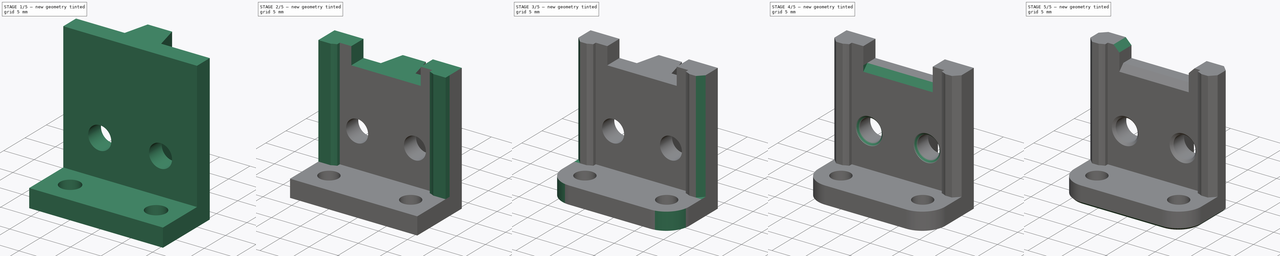
[diagram: build sequence overview — one tinted view per stage of 5, left to right]
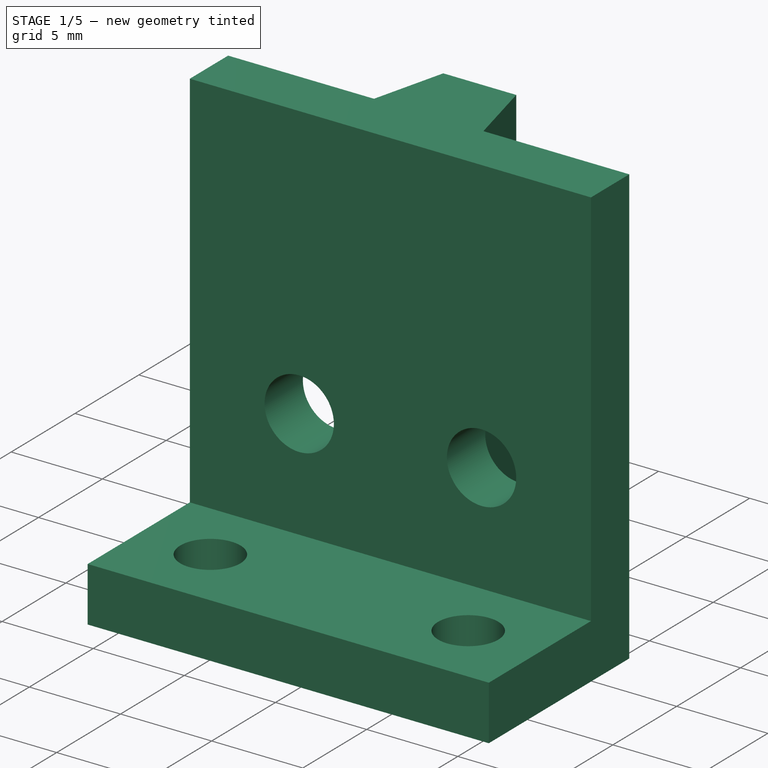
[diagram: stage 1 of 5 — iso view after this stage's code; geometry added in this stage tinted green]
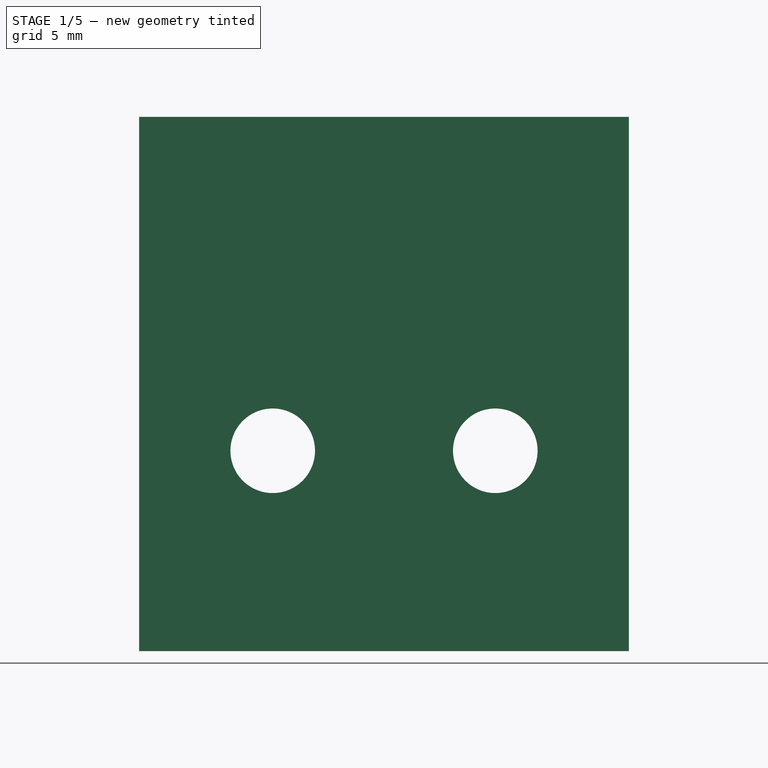
[diagram: stage 1 of 5 — front view after this stage's code; geometry added in this stage tinted green]
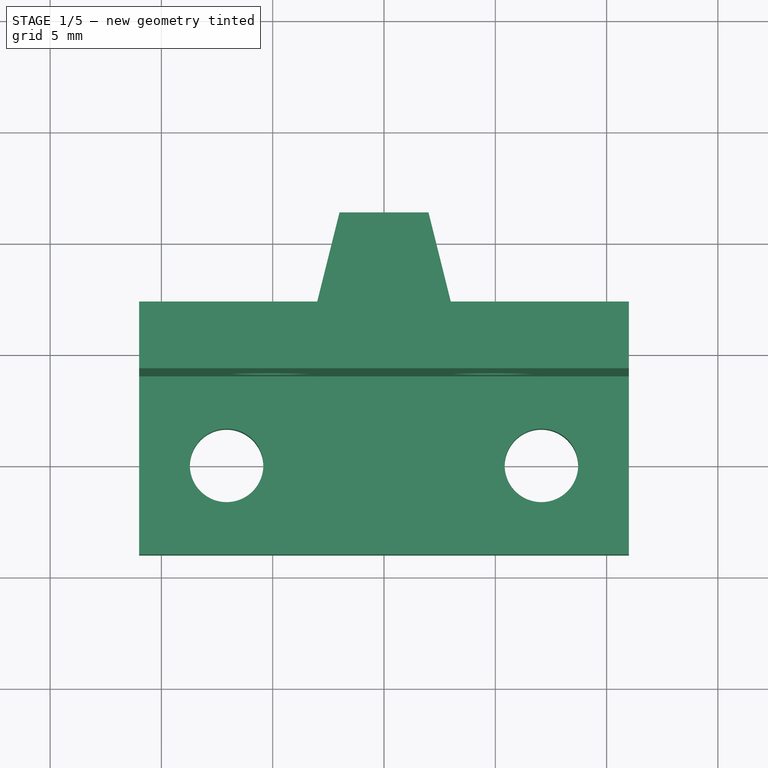
[diagram: stage 1 of 5 — top view after this stage's code; geometry added in this stage tinted green]
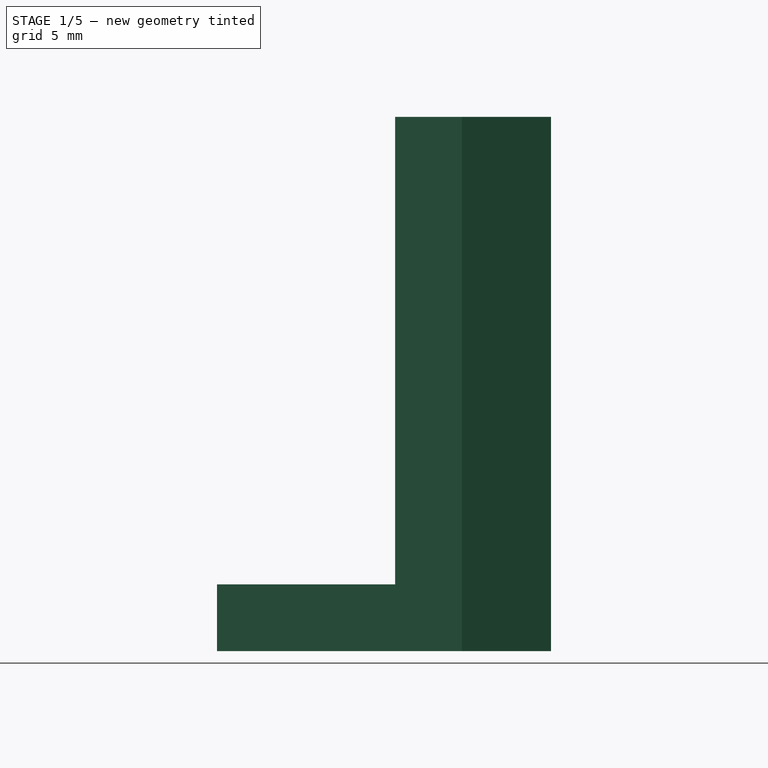
[diagram: stage 1 of 5 — right view after this stage's code; geometry added in this stage tinted green]
FCSTD DOCUMENT  (FreeCAD 0.19R24291 (Git))
Label: LM75-sensor-mount
License: Other
LicenseURL: GPL3
objects: Sketcher::SketchObject×7, PartDesign::Chamfer×7, PartDesign::Pocket×5, PartDesign::Pad×2, PartDesign::Fillet×1, PartDesign::Body×1, Part::Refine×1, Part::Feature×1
note: 40 computed .brp shape members not serialized (recipe doc carries the construction recipe); baked Part::Feature solids carry a one-line shape summary decoded from their .brp

FEATURE [Sketcher::SketchObject] Sketch
  FullyConstrained = true
  MapMode = 5
  Support = -> [XY_Plane]
  sketch-geometry (10):
    g0: Circle CenterX=-7.071 CenterY=0 CenterZ=0 NormalX=0 NormalY=0 NormalZ=1 AngleXU=0 Radius=1.65
    g1: Circle CenterX=7.071 CenterY=0 CenterZ=0 NormalX=0 NormalY=0 NormalZ=1 AngleXU=0 Radius=1.65
    g2: LineSegment StartX=-11 StartY=-4 StartZ=0 EndX=11 EndY=-4 EndZ=0
    g3: LineSegment StartX=-11 StartY=-4 StartZ=0 EndX=-11 EndY=7 EndZ=0
    g4: LineSegment StartX=11 StartY=-4 StartZ=0 EndX=11 EndY=7 EndZ=0
    g5: LineSegment StartX=-2 StartY=11 StartZ=0 EndX=2 EndY=11 EndZ=0
    g6: LineSegment StartX=-2 StartY=11 StartZ=0 EndX=-3 EndY=7 EndZ=0
    g7: LineSegment StartX=-3 StartY=7 StartZ=0 EndX=-11 EndY=7 EndZ=0
    g8: LineSegment StartX=2 StartY=11 StartZ=0 EndX=3 EndY=7 EndZ=0
    g9: LineSegment StartX=3 StartY=7 StartZ=0 EndX=11 EndY=7 EndZ=0
  constraints (30):
    c: Radius(g0) = 1.65
    c: Radius(g1) = 1.65
    c: DistanceY(g0,g1) = 0
    c: DistanceX(g0,g-1) = 7.071
    c: DistanceX(g0,g1) = 14.142
    c: DistanceY(g-1,g0) = 0
    c: Horizontal(g2)
    c: DistanceX(g2,g2) = 22
    c: DistanceX(g2,g-1) = 11
    c: DistanceY(g2,g-1) = 4
    c: Coincident(g2,g3)
    c: Vertical(g3)
    c: Coincident(g2,g4)
    c: Vertical(g4)
    c: Horizontal(g5)
    c: Coincident(g5,g6)
    c: Coincident(g6,g7)
    c: Coincident(g7,g3)
    c: Horizontal(g7)
    c: Coincident(g5,g8)
    c: Coincident(g8,g9)
    c: Coincident(g9,g4)
    c: Horizontal(g9)
    c: DistanceY(g3,g3) = 11
    c: DistanceY(g4,g4) = 11
    c: DistanceX(g7,g7) = 8
    c: DistanceX(g9,g9) = 8
    c: DistanceX(g5,g5) = 4
    c: DistanceX(g6,g5) = 1
    c: DistanceY(g6,g6) = 4
FEATURE [PartDesign::Pad] Pad
  Direction = (1,1,1)
  Length = 24
  Length2 = 100
  Profile = -> Sketch
  Type = 0
FEATURE [Sketcher::SketchObject] Sketch001
  FullyConstrained = true
  MapMode = 5
  Placement = pos=(0,0,24) rot=(0,0,1;0rad)
  Support = -> [Pad]
  sketch-geometry (4):
    g0: LineSegment StartX=-11 StartY=-4 StartZ=0 EndX=11 EndY=-4 EndZ=0
    g1: LineSegment StartX=11 StartY=-4 StartZ=0 EndX=11 EndY=4 EndZ=0
    g2: LineSegment StartX=11 StartY=4 StartZ=0 EndX=-11 EndY=4 EndZ=0
    g3: LineSegment StartX=-11 StartY=4 StartZ=0 EndX=-11 EndY=-4 EndZ=0
  constraints (12):
    c: Coincident(g0,g1)
    c: Coincident(g1,g2)
    c: Coincident(g2,g3)
    c: Coincident(g3,g0)
    c: Horizontal(g0)
    c: Horizontal(g2)
    c: Vertical(g1)
    c: Vertical(g3)
    c: DistanceX(g2,g2) = 22
    c: DistanceX(g2,g-1) = 11
    c: DistanceY(g1,g1) = 8
    c: DistanceY(g-1,g1) = 4
FEATURE [PartDesign::Pocket] Pocket
  BaseFeature = -> Pad
  Length = 21
  Length2 = 100
  Profile = -> Sketch001
  Type = 0
FEATURE [Sketcher::SketchObject] Sketch002
  FullyConstrained = true
  MapMode = 5
  Placement = pos=(0,4,0) rot=(1,0,0;1.5708rad)
  Support = -> [Pocket]
  sketch-geometry (2):
    g0: Circle CenterX=-5 CenterY=9 CenterZ=0 NormalX=0 NormalY=0 NormalZ=1 AngleXU=0 Radius=1.9
    g1: Circle CenterX=5 CenterY=9 CenterZ=0 NormalX=0 NormalY=0 NormalZ=1 AngleXU=0 Radius=1.9
  constraints (6):
    c: DistanceY(g0,g1) = 0
    c: DistanceX(g0,g1) = 10
    c: DistanceX(g0,g-1) = 5
    c: DistanceY(g-1,g1) = 9
    c: Radius(g0) = 1.9
    c: Radius(g1) = 1.9
FEATURE [PartDesign::Pocket] Pocket001
  BaseFeature = -> Pocket
  Length = 5
  Length2 = 100
  Profile = -> Sketch002
  Type = 1
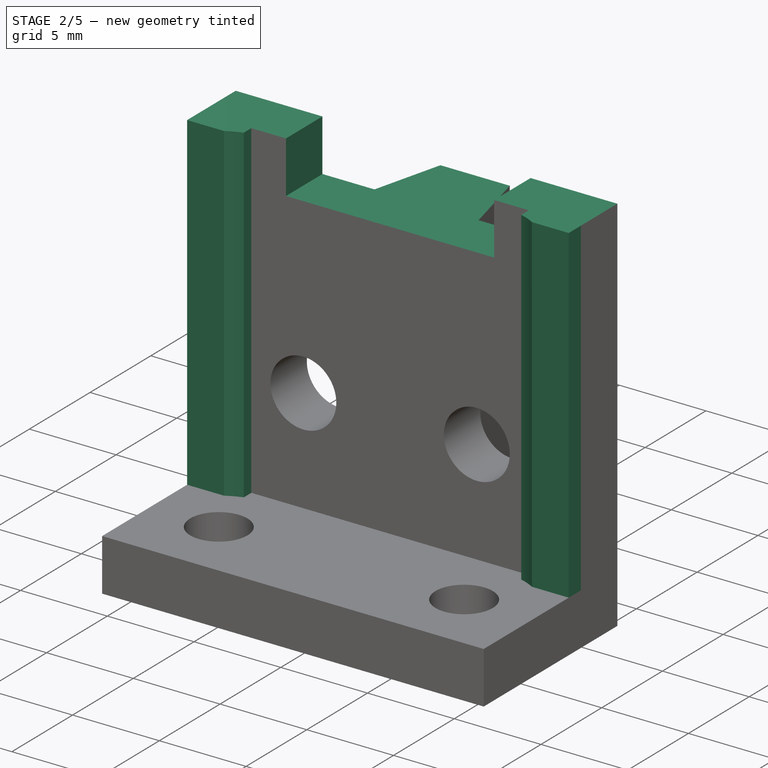
[diagram: stage 2 of 5 — iso view after this stage's code; geometry added in this stage tinted green]
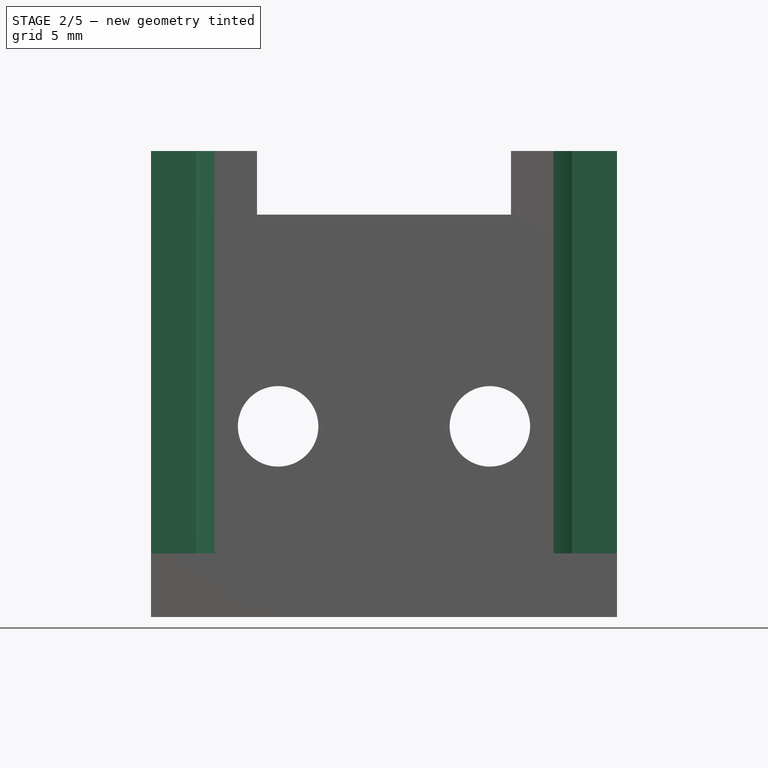
[diagram: stage 2 of 5 — front view after this stage's code; geometry added in this stage tinted green]
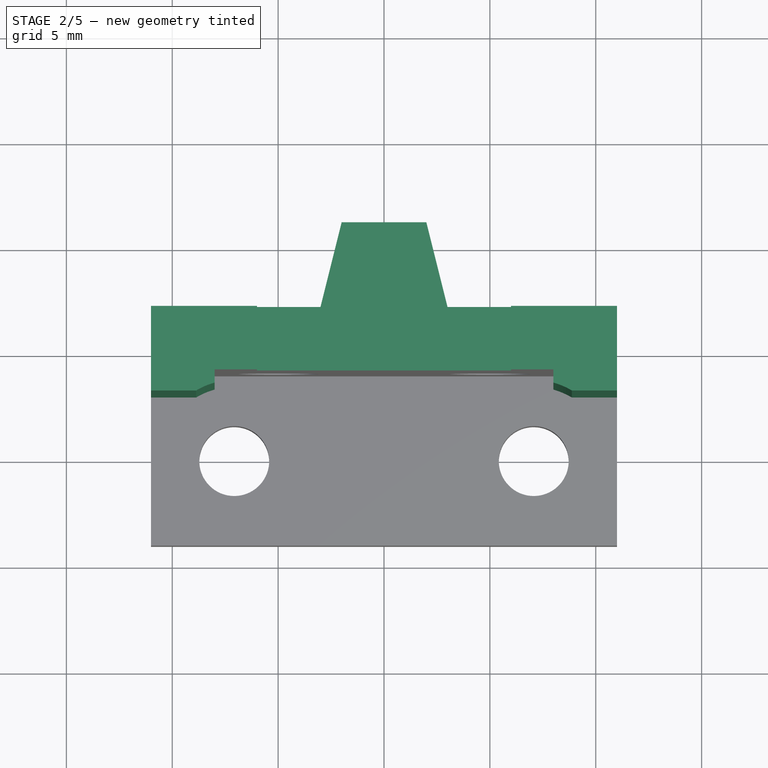
[diagram: stage 2 of 5 — top view after this stage's code; geometry added in this stage tinted green]
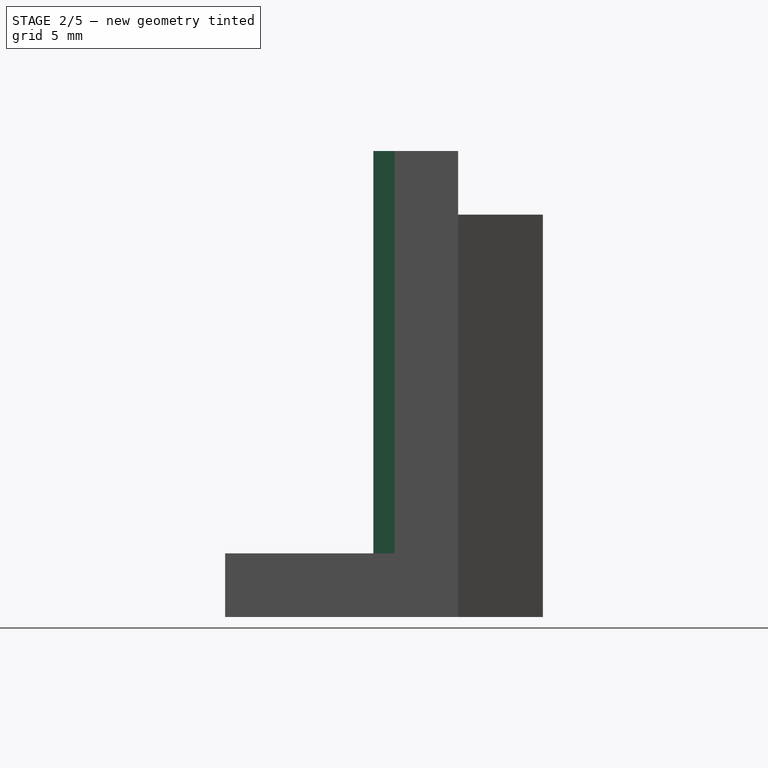
[diagram: stage 2 of 5 — right view after this stage's code; geometry added in this stage tinted green]
FEATURE [Sketcher::SketchObject] Sketch003
  FullyConstrained = true
  MapMode = 5
  Placement = pos=(0,4,0) rot=(1,0,0;1.5708rad)
  Support = -> [Pocket001]
  sketch-geometry (8):
    g0: LineSegment StartX=-6 StartY=19 StartZ=0 EndX=6 EndY=19 EndZ=0
    g1: LineSegment StartX=-6 StartY=19 StartZ=0 EndX=-6 EndY=22 EndZ=0
    g2: LineSegment StartX=-6 StartY=22 StartZ=0 EndX=-11 EndY=22 EndZ=0
    g3: LineSegment StartX=-11 StartY=22 StartZ=0 EndX=-11 EndY=24 EndZ=0
    g4: LineSegment StartX=-11 StartY=24 StartZ=0 EndX=11 EndY=24 EndZ=0
    g5: LineSegment StartX=11 StartY=24 StartZ=0 EndX=11 EndY=22 EndZ=0
    g6: LineSegment StartX=11 StartY=22 StartZ=0 EndX=6 EndY=22 EndZ=0
    g7: LineSegment StartX=6 StartY=22 StartZ=0 EndX=6 EndY=19 EndZ=0
  constraints (24):
    c: Horizontal(g0)
    c: DistanceX(g0,g0) = 12
    c: DistanceX(g0,g-1) = 6
    c: DistanceY(g-1,g0) = 19
    c: Coincident(g0,g1)
    c: Vertical(g1)
    c: Coincident(g1,g2)
    c: Horizontal(g2)
    c: Coincident(g2,g3)
    c: Vertical(g3)
    c: Coincident(g3,g4)
    c: Horizontal(g4)
    c: Coincident(g4,g5)
    c: Vertical(g5)
    c: Coincident(g5,g6)
    c: Horizontal(g6)
    c: Coincident(g6,g7)
    c: Coincident(g7,g0)
    c: Vertical(g7)
    c: DistanceY(g1,g1) = 3
    c: DistanceX(g2,g2) = 5
    c: DistanceY(g3,g3) = 2
    c: DistanceX(g4,g4) = 22
    c: DistanceY(g7,g7) = 3
FEATURE [PartDesign::Pocket] Pocket002
  BaseFeature = -> Pocket001
  Length = 5
  Length2 = 100
  Profile = -> Sketch003
  Type = 1
FEATURE [Sketcher::SketchObject] Sketch004
  FullyConstrained = true
  MapMode = 5
  Placement = pos=(0,4,0) rot=(1,0,0;1.5708rad)
  Support = -> [Pocket002]
  sketch-geometry (8):
    g0: LineSegment StartX=-11 StartY=22 StartZ=0 EndX=-8 EndY=22 EndZ=0
    g1: LineSegment StartX=-8 StartY=22 StartZ=0 EndX=-8 EndY=3 EndZ=0
    g2: LineSegment StartX=-8 StartY=3 StartZ=0 EndX=-11 EndY=3 EndZ=0
    g3: LineSegment StartX=-11 StartY=3 StartZ=0 EndX=-11 EndY=22 EndZ=0
    g4: LineSegment StartX=8 StartY=22 StartZ=0 EndX=11 EndY=22 EndZ=0
    g5: LineSegment StartX=11 StartY=22 StartZ=0 EndX=11 EndY=3 EndZ=0
    g6: LineSegment StartX=11 StartY=3 StartZ=0 EndX=8 EndY=3 EndZ=0
    g7: LineSegment StartX=8 StartY=3 StartZ=0 EndX=8 EndY=22 EndZ=0
  constraints (24):
    c: Coincident(g0,g1)
    c: Coincident(g1,g2)
    c: Coincident(g2,g3)
    c: Coincident(g3,g0)
    c: Horizontal(g0)
    c: Horizontal(g2)
    c: Vertical(g1)
    c: Vertical(g3)
    c: Coincident(g4,g5)
    c: Coincident(g5,g6)
    c: Coincident(g6,g7)
    c: Coincident(g7,g4)
    c: Horizontal(g4)
    c: Horizontal(g6)
    c: Vertical(g5)
    c: Vertical(g7)
    c: DistanceX(g4,g4) = 3
    c: DistanceX(g0,g0) = 3
    c: DistanceY(g5,g5) = 19
    c: DistanceY(g3,g3) = 19
    c: DistanceX(g1,g-1) = 8
    c: DistanceX(g-1,g6) = 8
    c: DistanceY(g-1,g1) = 3
    c: DistanceY(g-1,g6) = 3
FEATURE [PartDesign::Pad] Pad001
  BaseFeature = -> Pocket002
  Direction = (1,1,1)
  Length = 1
  Length2 = 100
  Profile = -> Sketch004
  Type = 0
FEATURE [Sketcher::SketchObject] Sketch005
  FullyConstrained = true
  MapMode = 5
  Placement = pos=(0,0,3) rot=(0,0,1;0rad)
  Support = -> [Pad001]
  sketch-geometry (2):
    g0: Circle CenterX=-7.071 CenterY=0 CenterZ=0 NormalX=0 NormalY=0 NormalZ=1 AngleXU=0 Radius=3.5
    g1: Circle CenterX=7.071 CenterY=0 CenterZ=0 NormalX=0 NormalY=0 NormalZ=1 AngleXU=0 Radius=3.5
  constraints (6):
    c: DistanceX(g0,g1) = 14.142
    c: DistanceX(g0,g-1) = 7.071
    c: DistanceY(g-1,g0) = 0
    c: DistanceY(g-1,g1) = 0
    c: Radius(g0) = 3.5
    c: Radius(g1) = 3.5
FEATURE [PartDesign::Pocket] Pocket003
  BaseFeature = -> Pad001
  Length = 5
  Length2 = 100
  Profile = -> Sketch005
  Reversed = true
  Type = 1
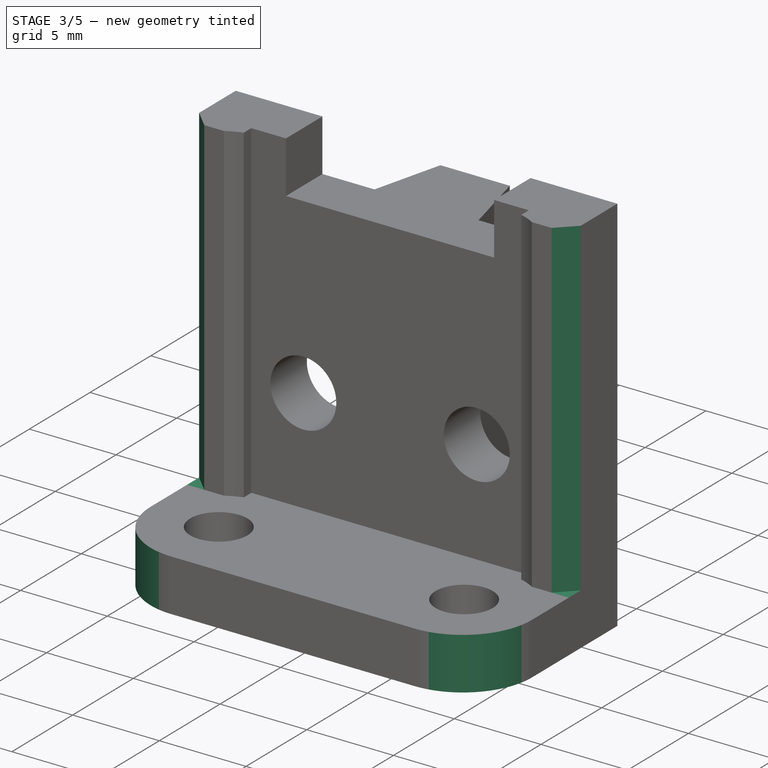
[diagram: stage 3 of 5 — iso view after this stage's code; geometry added in this stage tinted green]
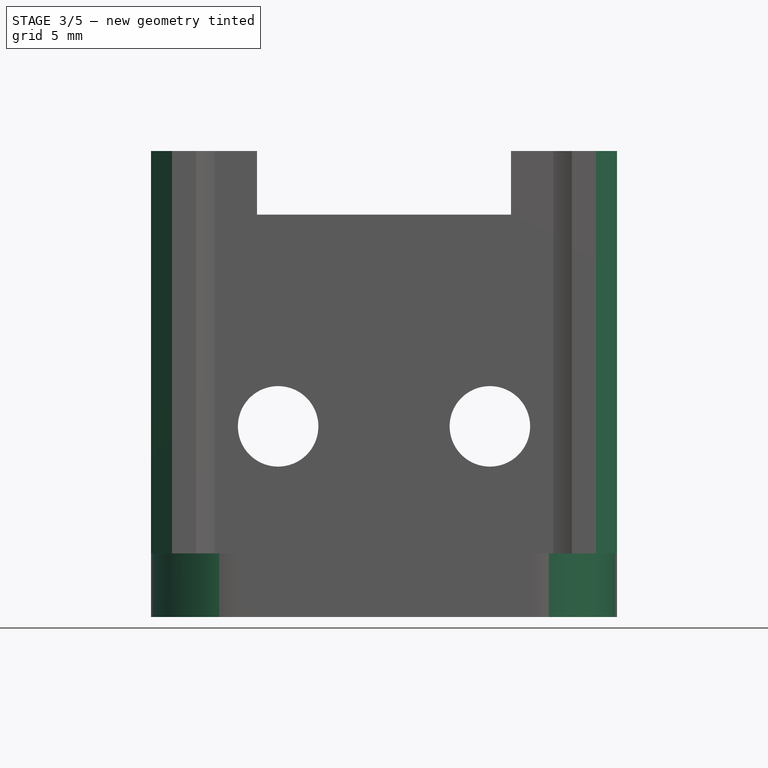
[diagram: stage 3 of 5 — front view after this stage's code; geometry added in this stage tinted green]
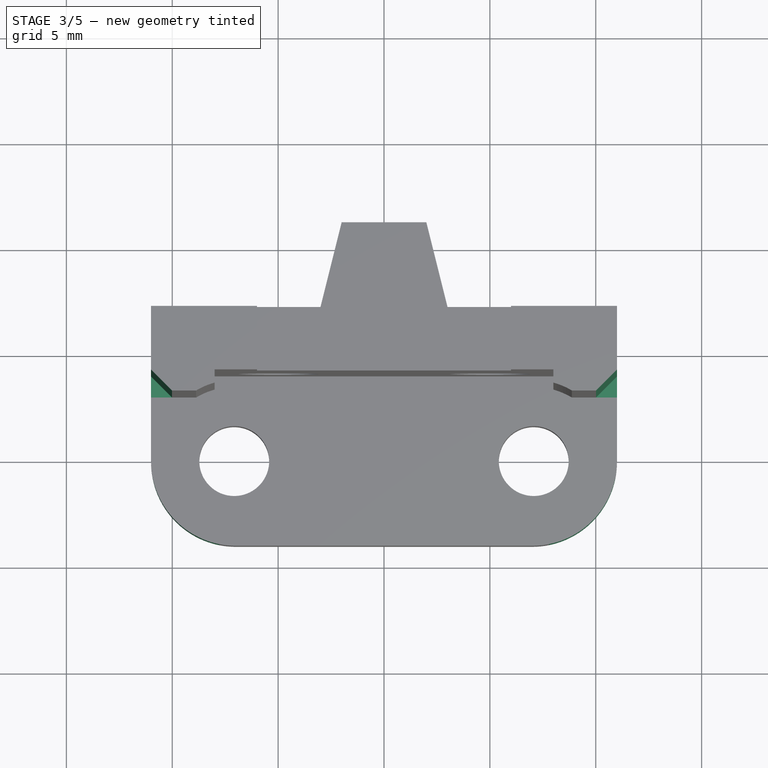
[diagram: stage 3 of 5 — top view after this stage's code; geometry added in this stage tinted green]
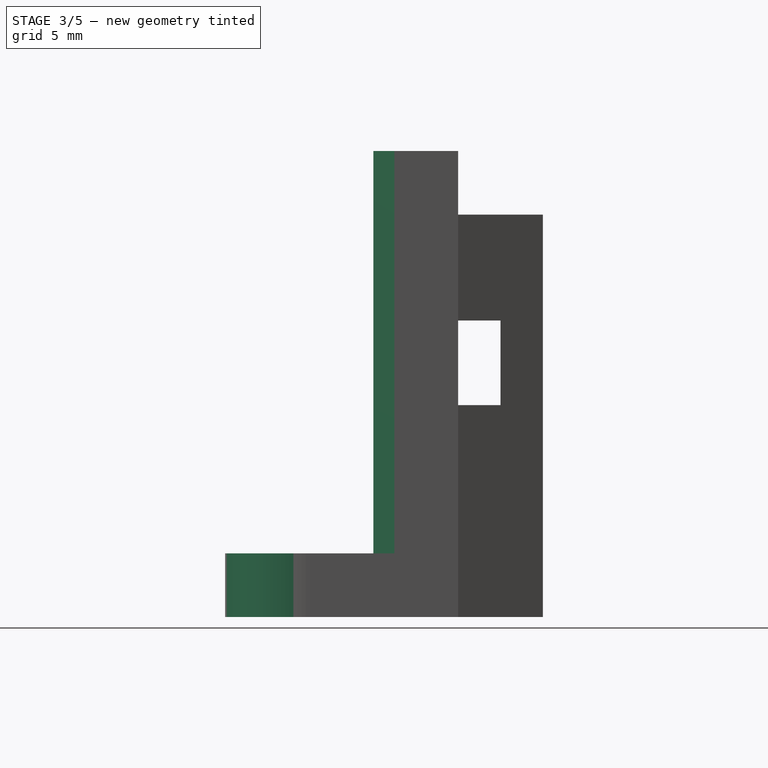
[diagram: stage 3 of 5 — right view after this stage's code; geometry added in this stage tinted green]
FEATURE [Sketcher::SketchObject] Sketch006
  FullyConstrained = true
  MapMode = 5
  Placement = pos=(-11,0,0) rot=(0.57735,-0.57735,-0.57735;2.0944rad)
  Support = -> [Pocket003]
  sketch-geometry (4):
    g0: LineSegment StartX=-7 StartY=14 StartZ=0 EndX=-9 EndY=14 EndZ=0
    g1: LineSegment StartX=-9 StartY=14 StartZ=0 EndX=-9 EndY=10 EndZ=0
    g2: LineSegment StartX=-9 StartY=10 StartZ=0 EndX=-7 EndY=10 EndZ=0
    g3: LineSegment StartX=-7 StartY=10 StartZ=0 EndX=-7 EndY=14 EndZ=0
  constraints (12):
    c: Coincident(g0,g1)
    c: Coincident(g1,g2)
    c: Coincident(g2,g3)
    c: Coincident(g3,g0)
    c: Horizontal(g0)
    c: Horizontal(g2)
    c: Vertical(g1)
    c: Vertical(g3)
    c: DistanceX(g0,g0) = 2
    c: DistanceX(g2,g-1) = 7
    c: DistanceY(g1,g1) = 4
    c: DistanceY(g-1,g2) = 10
FEATURE [PartDesign::Pocket] Pocket004
  BaseFeature = -> Pocket003
  Length = 5
  Length2 = 100
  Profile = -> Sketch006
  Type = 1
FEATURE [PartDesign::Fillet] Fillet
  Base = -> Pocket004 [Edge47,Edge48]
  BaseFeature = -> Pocket004
  Radius = 4
  SupportTransform = false
FEATURE [PartDesign::Chamfer] Chamfer
  Angle = 45
  Base = -> Fillet [Edge74,Edge95]
  BaseFeature = -> Fillet
  ChamferType = 0
  FlipDirection = false
  Size = 0.99
  Size2 = 1
  SupportTransform = false
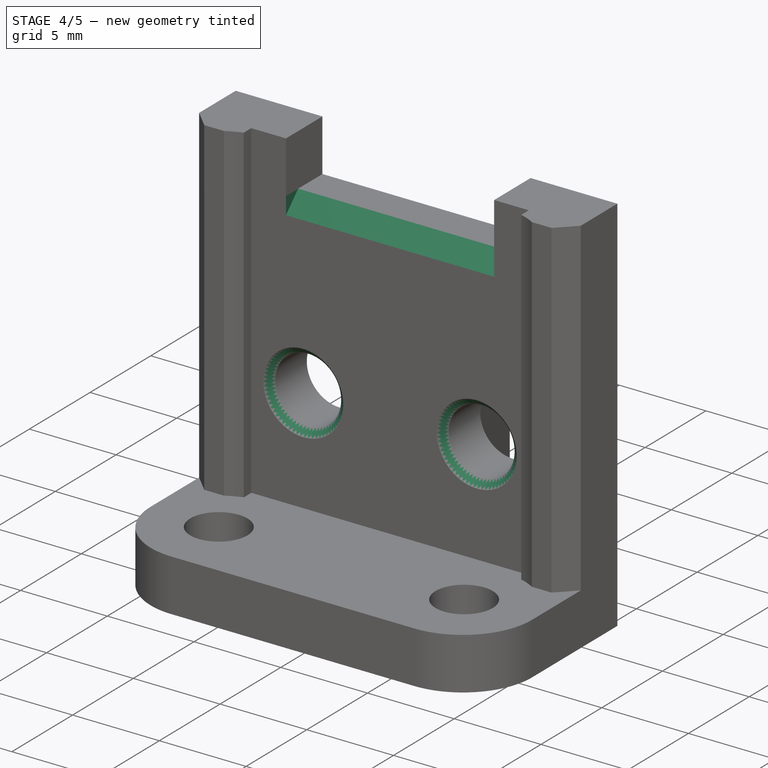
[diagram: stage 4 of 5 — iso view after this stage's code; geometry added in this stage tinted green]
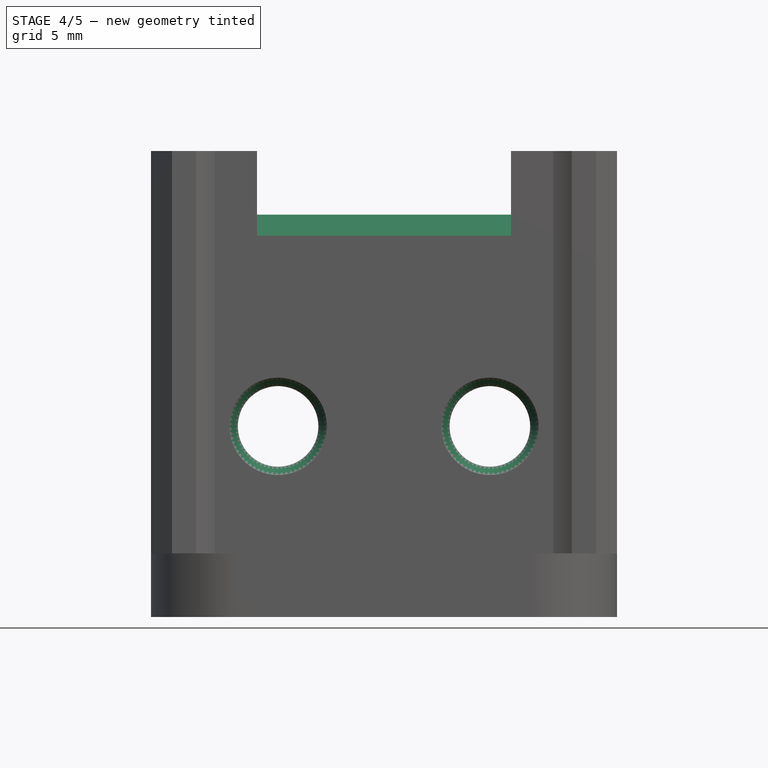
[diagram: stage 4 of 5 — front view after this stage's code; geometry added in this stage tinted green]
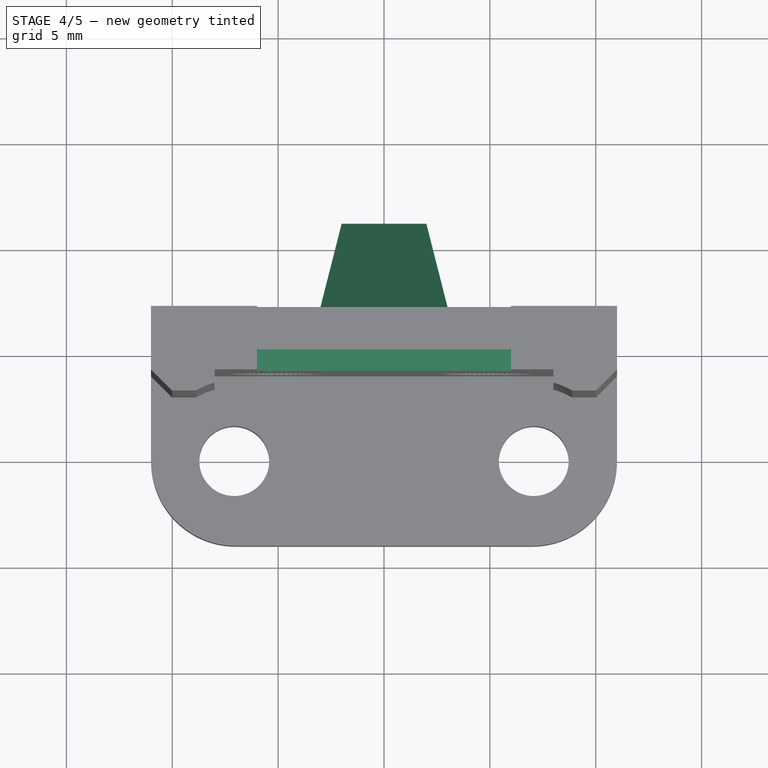
[diagram: stage 4 of 5 — top view after this stage's code; geometry added in this stage tinted green]
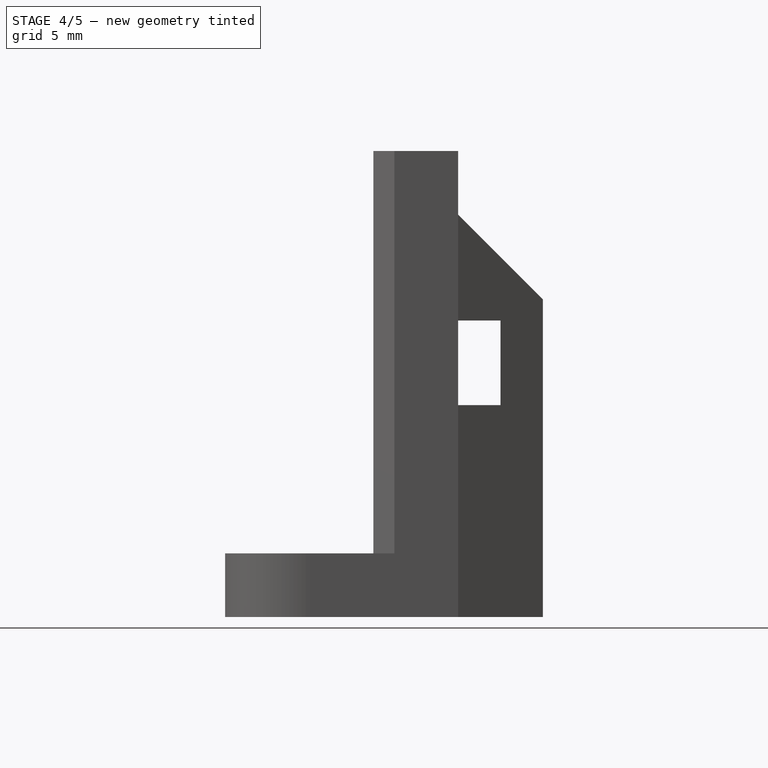
[diagram: stage 4 of 5 — right view after this stage's code; geometry added in this stage tinted green]
FEATURE [PartDesign::Chamfer] Chamfer001
  Angle = 45
  Base = -> Chamfer [Edge45]
  BaseFeature = -> Chamfer
  ChamferType = 0
  FlipDirection = false
  Size = 1
  Size2 = 1
  SupportTransform = false
FEATURE [PartDesign::Chamfer] Chamfer002
  Angle = 45
  Base = -> Chamfer001 [Edge60]
  BaseFeature = -> Chamfer001
  ChamferType = 0
  FlipDirection = false
  Size = 4
  Size2 = 1
  SupportTransform = false
FEATURE [PartDesign::Chamfer] Chamfer003
  Angle = 45
  Base = -> Chamfer002 [Edge64,Edge63]
  BaseFeature = -> Chamfer002
  ChamferType = 0
  FlipDirection = false
  Size = 0.4
  Size2 = 1
  SupportTransform = false
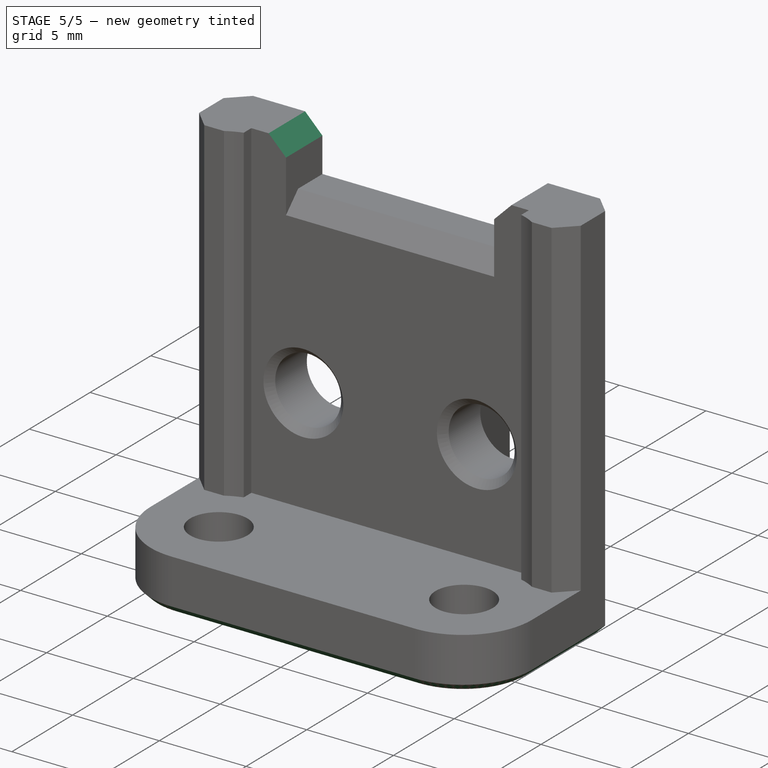
[diagram: stage 5 of 5 — iso view after this stage's code; geometry added in this stage tinted green]
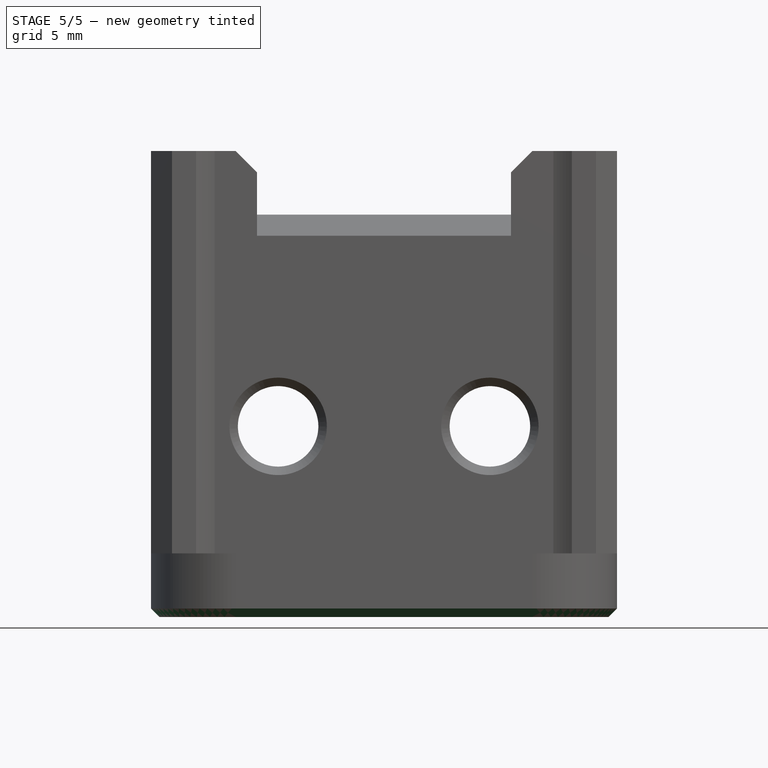
[diagram: stage 5 of 5 — front view after this stage's code; geometry added in this stage tinted green]
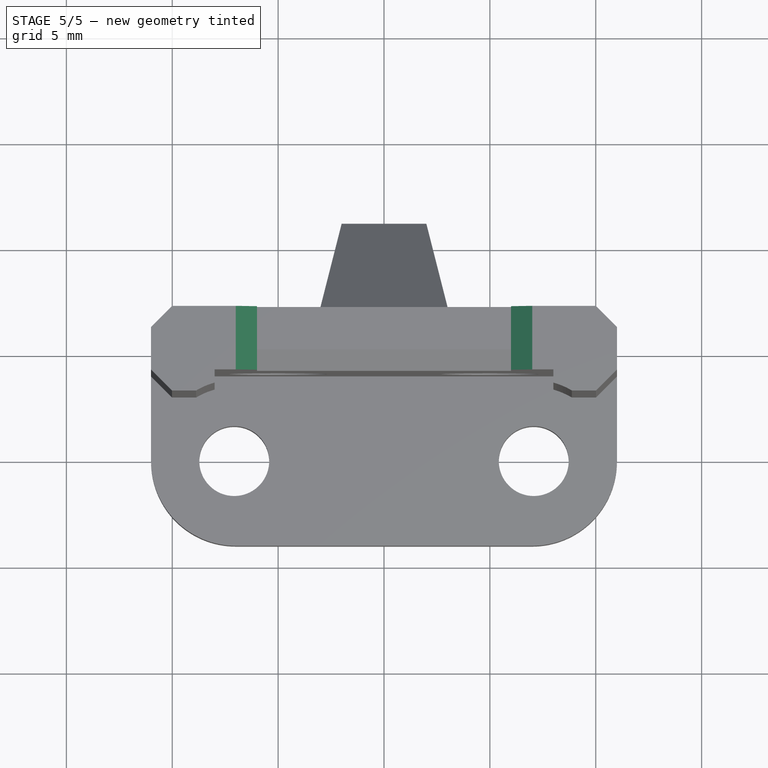
[diagram: stage 5 of 5 — top view after this stage's code; geometry added in this stage tinted green]
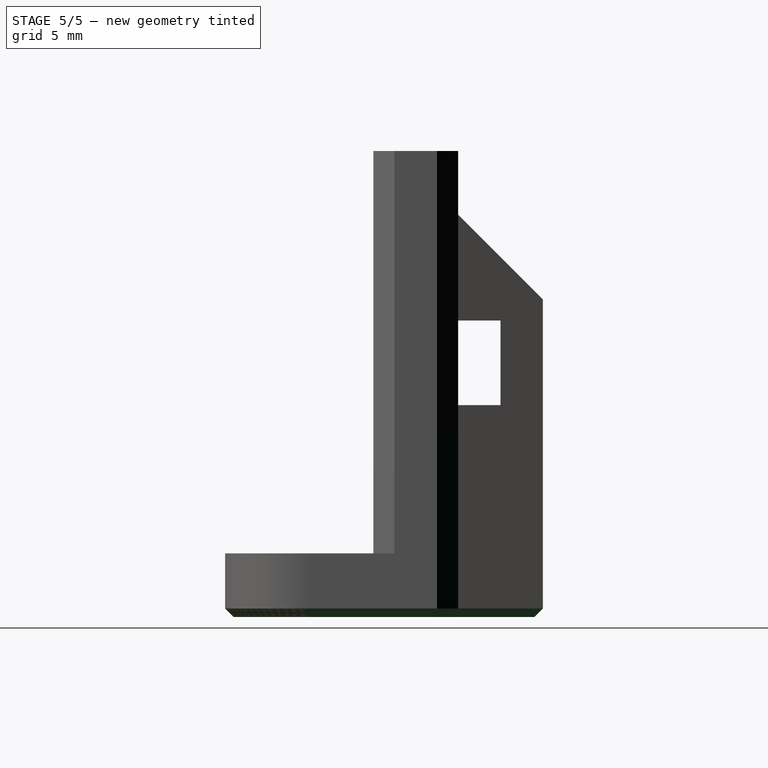
[diagram: stage 5 of 5 — right view after this stage's code; geometry added in this stage tinted green]
FEATURE [PartDesign::Chamfer] Chamfer004
  Angle = 45
  Base = -> Chamfer003 [Edge76,Edge96]
  BaseFeature = -> Chamfer003
  ChamferType = 0
  FlipDirection = false
  Size = 1
  Size2 = 1
  SupportTransform = false
FEATURE [PartDesign::Chamfer] Chamfer005
  Angle = 45
  Base = -> Chamfer004 [Face13]
  BaseFeature = -> Chamfer004
  ChamferType = 0
  FlipDirection = false
  Size = 0.4
  Size2 = 1
  SupportTransform = false
FEATURE [PartDesign::Chamfer] Chamfer006
  Angle = 45
  Base = -> Chamfer005 [Edge152,Edge40]
  BaseFeature = -> Chamfer005
  ChamferType = 0
  FlipDirection = false
  Size = 1
  Size2 = 1
  SupportTransform = false
FEATURE [PartDesign::Body] Body
  Group = -> [Sketch,Pad,Sketch001,Pocket,Sketch002,Pocket001,Sketch003,Pocket002,Sketch004,Pad001,Sketch005,Pocket003,Sketch006,Pocket004,Fillet,Chamfer,Chamfer001,Chamfer002,Chamfer003,Chamfer004,Chamfer005,Chamfer006]
  Origin = -> Origin
  Tip = -> Chamfer006
FEATURE [Part::Refine] Body001
  Source = -> Body
FEATURE [Part::Feature] Body001001
  shape: bbox 22 x 15 x 22 mm, 55 faces (baked)
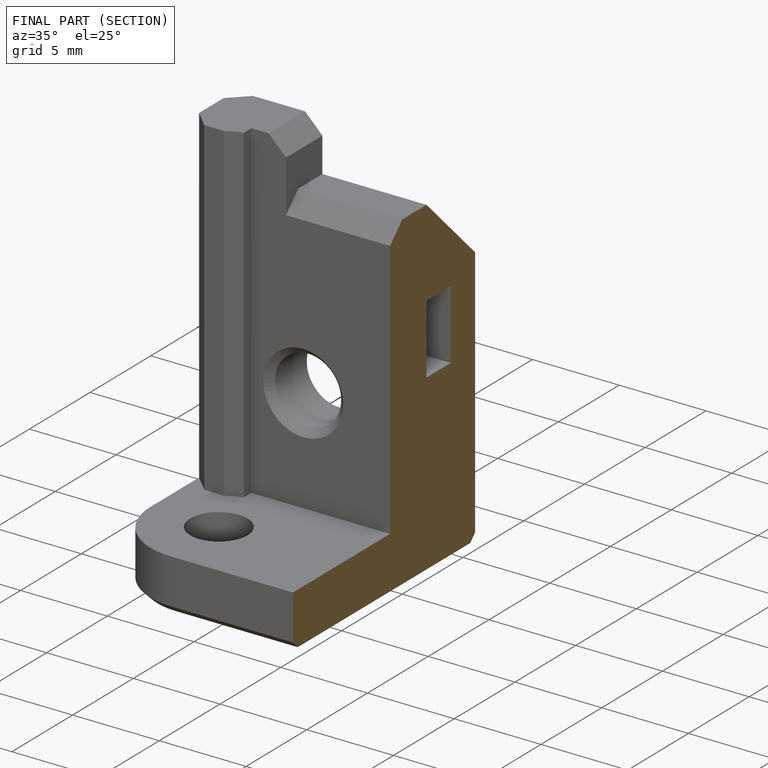
[diagram: finished part — half-section view (interior)]
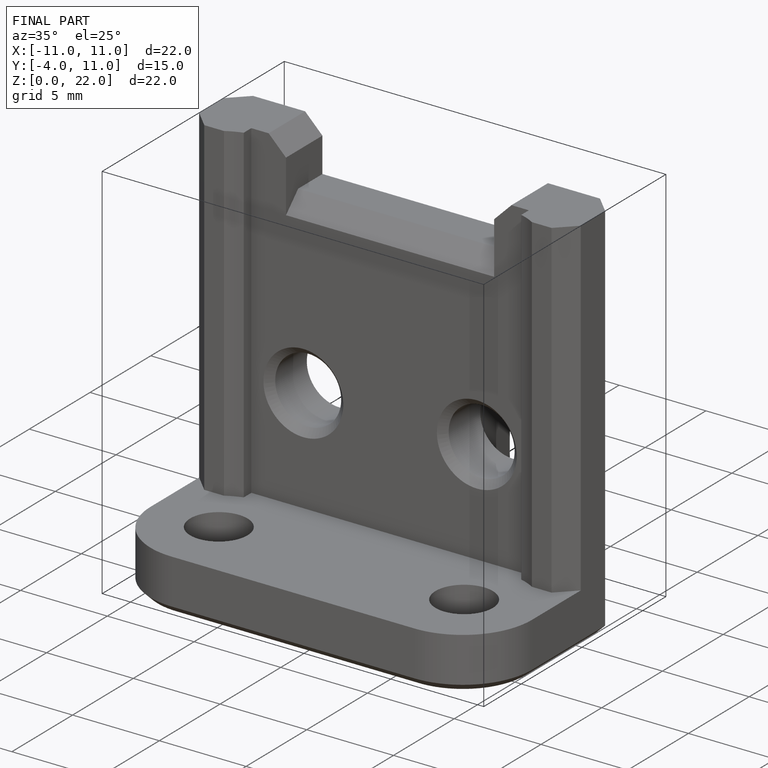
[diagram: finished part — iso view with bounding-box wireframe]
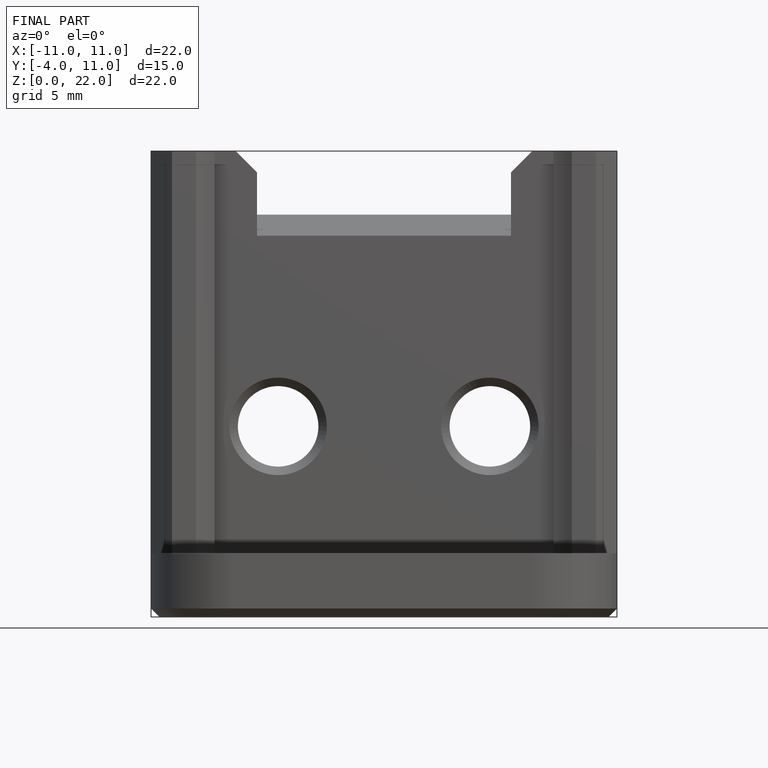
[diagram: finished part — front view with bounding-box wireframe]
